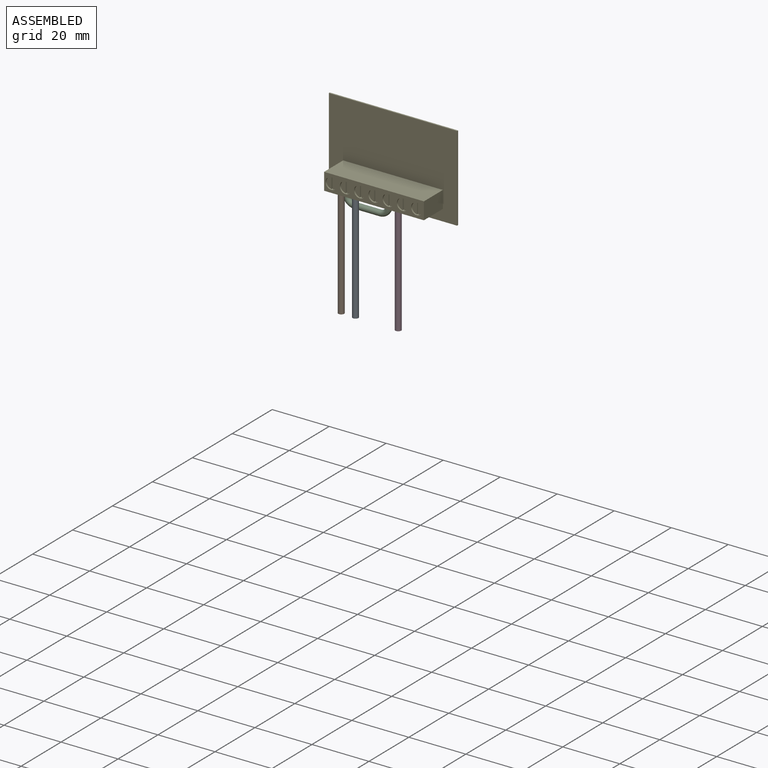
[diagram: assembled view]
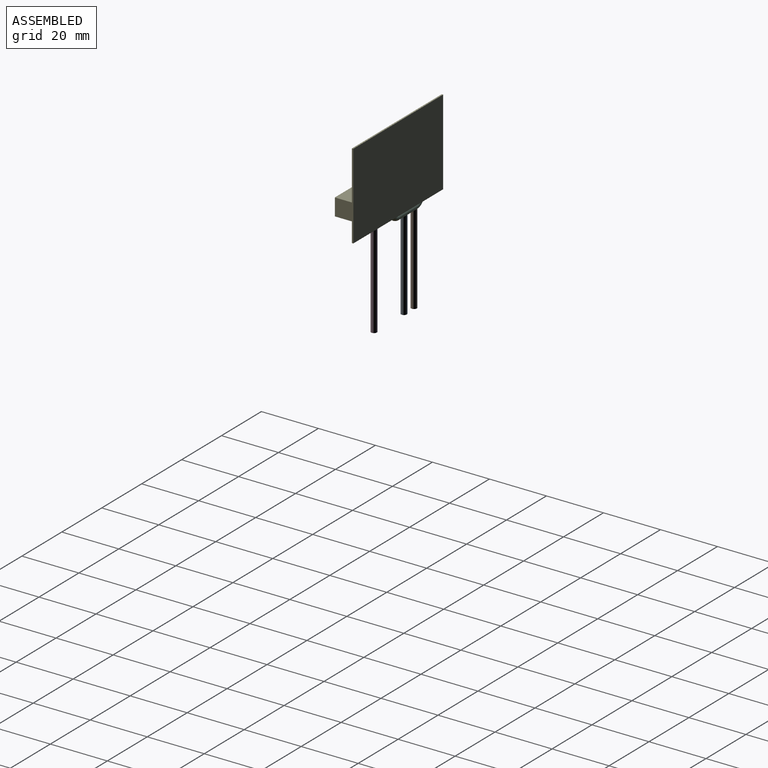
[diagram: assembled view, second angle]
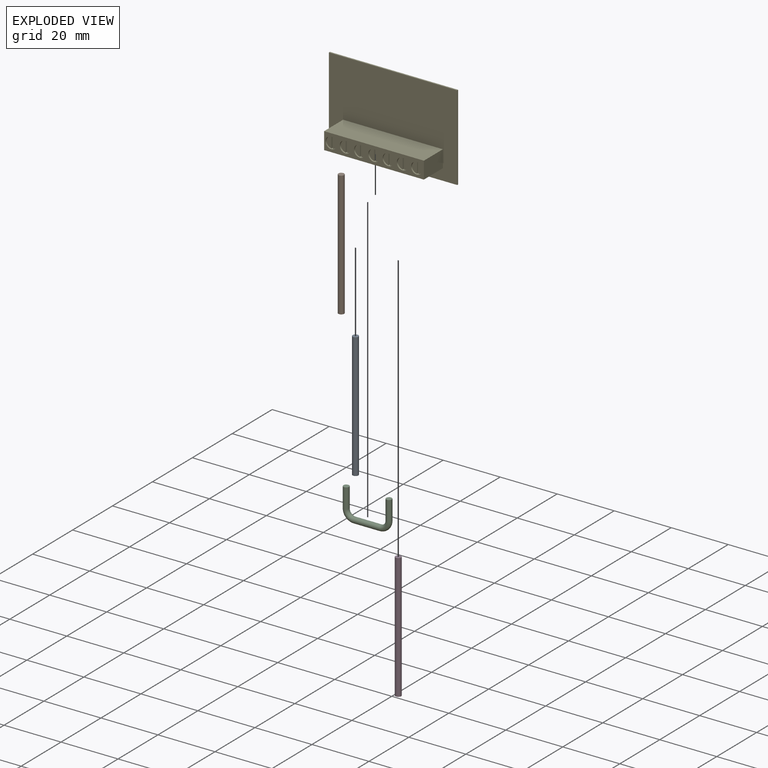
[diagram: exploded view]
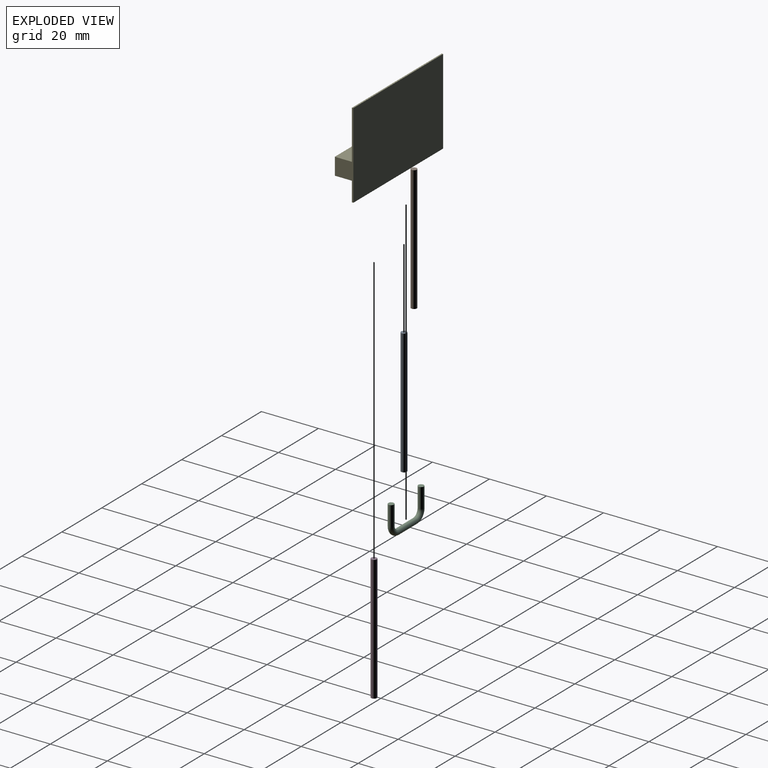
[diagram: exploded view, second angle]
ASSEMBLY  parts=5 mates=4
PART A: 3 faces, bbox 2x44x2 mm
  f0: cylinder r=1mm len=44mm, axis (0,1,0), area 276.5mm2, adj f1,f2
  f1: plane 2x2mm, normal (0,-1,0), area 3.1mm2, adj f0
  f2: plane 2x2mm, normal (0,1,0), area 3.1mm2, adj f0
PART B: same geometry as A
PART C: 7 faces, bbox 17.7x2x11.3 mm
  f0: plane 2x2mm, normal (0,0,-1), area 3.1mm2, adj f2
  f1: plane 2x2mm, normal (0,0,-1), area 3.1mm2, adj f6
  f2: cylinder r=1mm len=7mm, axis (0,0,1), area 44mm2, adj f0,f3
  f3: torus R=3mm, axis (0,1,0), area 29.6mm2, adj f2,f4
  f4: cylinder r=1mm len=9mm, axis (1,0,0), area 56.5mm2, adj f3,f5
  f5: torus R=3mm, axis (0,1,0), area 29.6mm2, adj f4,f6
  f6: cylinder r=1mm len=7mm, axis (0,0,-1), area 44mm2, adj f1,f5
PART D: same geometry as A
PART E: 104 faces, bbox 45x10x30 mm
  f0: plane 35x6mm, normal (0,-1,0), area 122.1mm2, adj f1,f2,f3,f34,f36,f38,f40,f42
  f1: plane 35x9.5mm, normal (0,0,-1), area 212.5mm2, adj f0,f2,f4,f5,f6,f7,f9,f10
  f2: plane 9.5x6mm, normal (-1,0,0), area 57mm2, adj f0,f1,f3,f98
  f3: plane 35x9.5mm, normal (0,0,1), area 332.5mm2, adj f0,f2,f88,f98
  f4: plane 4x4mm, normal (0,-1,0), area 16mm2, adj f1,f5,f7,f8
  f5: plane 5x4mm, normal (-1,0,0), area 20mm2, adj f1,f4,f6,f8
  f6: plane 4x4mm, normal (0,1,0), area 16mm2, adj f1,f5,f7,f8
  f7: plane 5x4mm, normal (1,0,0), area 20mm2, adj f1,f4,f6,f8
  f8: plane 5x4mm, normal (0,0,-1), area 20mm2, adj f4,f5,f6,f7
  f9: plane 4x4mm, normal (0,-1,0), area 16mm2, adj f1,f10,f12,f13
  f10: plane 5x4mm, normal (-1,0,0), area 20mm2, adj f1,f9,f11,f13
  f11: plane 4x4mm, normal (0,1,0), area 16mm2, adj f1,f10,f12,f13
  f12: plane 5x4mm, normal (1,0,0), area 20mm2, adj f1,f9,f11,f13
  f13: plane 5x4mm, normal (0,0,-1), area 20mm2, adj f9,f10,f11,f12
  f14: plane 5x4mm, normal (-1,0,0), area 20mm2, adj f1,f15,f17,f18
  f15: plane 4x4mm, normal (0,1,0), area 16mm2, adj f1,f14,f16,f18
  f16: plane 5x4mm, normal (1,0,0), area 20mm2, adj f1,f15,f17,f18
  f17: plane 4x4mm, normal (0,-1,0), area 16mm2, adj f1,f14,f16,f18
  f18: plane 5x4mm, normal (0,0,-1), area 20mm2, adj f14,f15,f16,f17
  f19: plane 5x4mm, normal (1,0,0), area 20mm2, adj f1,f20,f22,f23
  f20: plane 4x4mm, normal (0,-1,0), area 16mm2, adj f1,f19,f21,f23
  f21: plane 5x4mm, normal (-1,0,0), area 20mm2, adj f1,f20,f22,f23
  f22: plane 4x4mm, normal (0,1,0), area 16mm2, adj f1,f19,f21,f23
  f23: plane 5x4mm, normal (0,0,-1), area 20mm2, adj f19,f20,f21,f22
  f24: plane 5x4mm, normal (1,0,0), area 20mm2, adj f1,f25,f27,f28
  f25: plane 4x4mm, normal (0,-1,0), area 16mm2, adj f1,f24,f26,f28
  f26: plane 5x4mm, normal (-1,0,0), area 20mm2, adj f1,f25,f27,f28
  f27: plane 4x4mm, normal (0,1,0), area 16mm2, adj f1,f24,f26,f28
  f28: plane 5x4mm, normal (0,0,-1), area 20mm2, adj f24,f25,f26,f27
  f29: plane 5x4mm, normal (-1,0,0), area 20mm2, adj f1,f30,f32,f33
  f30: plane 4x4mm, normal (0,1,0), area 16mm2, adj f1,f29,f31,f33
  f31: plane 5x4mm, normal (1,0,0), area 20mm2, adj f1,f30,f32,f33
  f32: plane 4x4mm, normal (0,-1,0), area 16mm2, adj f1,f29,f31,f33
  f33: plane 5x4mm, normal (0,0,-1), area 20mm2, adj f29,f30,f31,f32
  f34: cylinder r=2mm len=3.97mm, axis (0,-1,0), area 2.9mm2, adj f0,f35,f83,f85
  f35: plane 3.97x1.75mm, normal (0,-1,0), area 5.3mm2, adj f34,f86
  f36: cylinder r=2mm len=3.97mm, axis (0,-1,0), area 2.9mm2, adj f0,f37,f83,f85
  f37: plane 3.97x1.75mm, normal (0,-1,0), area 5.3mm2, adj f36,f84
  f38: cylinder r=2mm len=3.97mm, axis (0,-1,0), area 2.9mm2, adj f0,f39,f79,f81
  f39: plane 3.97x1.75mm, normal (0,-1,0), area 5.3mm2, adj f38,f78
  f40: cylinder r=2mm len=3.97mm, axis (0,-1,0), area 2.9mm2, adj f0,f41,f79,f81
  f41: plane 3.97x1.75mm, normal (0,-1,0), area 5.3mm2, adj f40,f80
  f42: cylinder r=2mm len=3.97mm, axis (0,-1,0), area 2.9mm2, adj f0,f43,f74,f76
  f43: plane 3.97x1.75mm, normal (0,-1,0), area 5.3mm2, adj f42,f75
  f44: cylinder r=2mm len=3.97mm, axis (0,-1,0), area 2.9mm2, adj f0,f45,f74,f76
  f45: plane 3.97x1.75mm, normal (0,-1,0), area 5.3mm2, adj f44,f73
  f46: cylinder r=2mm len=3.97mm, axis (0,-1,0), area 2.9mm2, adj f0,f47,f69,f71
  f47: plane 3.97x1.75mm, normal (0,-1,0), area 5.3mm2, adj f46,f70
  f48: cylinder r=2mm len=3.97mm, axis (0,-1,0), area 2.9mm2, adj f0,f49,f69,f71
  f49: plane 3.97x1.75mm, normal (0,-1,0), area 5.3mm2, adj f48,f68
  f50: cylinder r=2mm len=3.97mm, axis (0,-1,0), area 2.9mm2, adj f0,f51,f64,f66
  f51: plane 3.97x1.75mm, normal (0,-1,0), area 5.3mm2, adj f50,f63
  f52: cylinder r=2mm len=3.97mm, axis (0,-1,0), area 2.9mm2, adj f0,f53,f64,f66
  f53: plane 3.97x1.75mm, normal (0,-1,0), area 5.3mm2, adj f52,f65
  f54: cylinder r=2mm len=3.97mm, axis (0,-1,0), area 2.9mm2, adj f0,f55,f59,f61
  f55: plane 3.97x1.75mm, normal (0,-1,0), area 5.3mm2, adj f54,f58
  f56: cylinder r=2mm len=3.97mm, axis (0,-1,0), area 2.9mm2, adj f0,f57,f59,f61
  f57: plane 3.97x1.75mm, normal (0,-1,0), area 5.3mm2, adj f56,f60
  f58: plane 3.97x0.5mm, normal (-1,0,0), area 2mm2, adj f55,f59,f61,f62
  f59: plane 1x0.5mm, normal (0,0,-1), area 0.5mm2, adj f0,f54,f56,f58,f60,f62
  f60: plane 3.97x0.5mm, normal (1,0,0), area 2mm2, adj f57,f59,f61,f62
  f61: plane 1x0.5mm, normal (0,0,1), area 0.5mm2, adj f0,f54,f56,f58,f60,f62
  f62: plane 3.97x0.5mm, normal (0,-1,0), area 2mm2, adj f58,f59,f60,f61
  f63: plane 3.97x0.5mm, normal (-1,0,0), area 2mm2, adj f51,f64,f66,f67
  f64: plane 1x0.5mm, normal (0,0,-1), area 0.5mm2, adj f0,f50,f52,f63,f65,f67
  f65: plane 3.97x0.5mm, normal (1,0,0), area 2mm2, adj f53,f64,f66,f67
  f66: plane 1x0.5mm, normal (0,0,1), area 0.5mm2, adj f0,f50,f52,f63,f65,f67
  f67: plane 3.97x0.5mm, normal (0,-1,0), area 2mm2, adj f63,f64,f65,f66
  f68: plane 3.97x0.5mm, normal (1,0,0), area 2mm2, adj f49,f69,f71,f72
  f69: plane 1x0.5mm, normal (0,0,1), area 0.5mm2, adj f0,f46,f48,f68,f70,f72
  f70: plane 3.97x0.5mm, normal (-1,0,0), area 2mm2, adj f47,f69,f71,f72
  f71: plane 1x0.5mm, normal (0,0,-1), area 0.5mm2, adj f0,f46,f48,f68,f70,f72
  f72: plane 3.97x0.5mm, normal (0,-1,0), area 2mm2, adj f68,f69,f70,f71
  f73: plane 3.97x0.5mm, normal (1,0,0), area 2mm2, adj f45,f74,f76,f77
  f74: plane 1x0.5mm, normal (0,0,1), area 0.5mm2, adj f0,f42,f44,f73,f75,f77
  f75: plane 3.97x0.5mm, normal (-1,0,0), area 2mm2, adj f43,f74,f76,f77
  f76: plane 1x0.5mm, normal (0,0,-1), area 0.5mm2, adj f0,f42,f44,f73,f75,f77
  f77: plane 3.97x0.5mm, normal (0,-1,0), area 2mm2, adj f73,f74,f75,f76
  f78: plane 3.97x0.5mm, normal (-1,0,0), area 2mm2, adj f39,f79,f81,f82
  f79: plane 1x0.5mm, normal (0,0,-1), area 0.5mm2, adj f0,f38,f40,f78,f80,f82
  f80: plane 3.97x0.5mm, normal (1,0,0), area 2mm2, adj f41,f79,f81,f82
  f81: plane 1x0.5mm, normal (0,0,1), area 0.5mm2, adj f0,f38,f40,f78,f80,f82
  f82: plane 3.97x0.5mm, normal (0,-1,0), area 2mm2, adj f78,f79,f80,f81
  f83: plane 1x0.5mm, normal (0,0,-1), area 0.5mm2, adj f0,f34,f36,f84,f86,f87
  f84: plane 3.97x0.5mm, normal (1,0,0), area 2mm2, adj f37,f83,f85,f87
  f85: plane 1x0.5mm, normal (0,0,1), area 0.5mm2, adj f0,f34,f36,f84,f86,f87
  f86: plane 3.97x0.5mm, normal (-1,0,0), area 2mm2, adj f35,f83,f85,f87
  f87: plane 3.97x0.5mm, normal (0,-1,0), area 2mm2, adj f83,f84,f85,f86
  f88: plane 9.5x6mm, normal (1,0,0), area 57mm2, adj f0,f1,f3,f98
  f89: cylinder r=2mm len=3.97mm, axis (0,-1,0), area 2.9mm2, adj f0,f90,f92,f94
  f90: plane 3.97x1.75mm, normal (0,-1,0), area 5.3mm2, adj f89,f93
  f91: plane 3.97x0.5mm, normal (1,0,0), area 2mm2, adj f92,f94,f95,f97
  f92: plane 1x0.5mm, normal (0,0,1), area 0.5mm2, adj f0,f89,f91,f93,f95,f96
  f93: plane 3.97x0.5mm, normal (-1,0,0), area 2mm2, adj f90,f92,f94,f95
  f94: plane 1x0.5mm, normal (0,0,-1), area 0.5mm2, adj f0,f89,f91,f93,f95,f96
  f95: plane 3.97x0.5mm, normal (0,-1,0), area 2mm2, adj f91,f92,f93,f94
  f96: cylinder r=2mm len=3.97mm, axis (0,-1,0), area 2.9mm2, adj f0,f92,f94,f97
  f97: plane 3.97x1.75mm, normal (0,-1,0), area 5.3mm2, adj f91,f96
  f98: plane 45x30mm, normal (0,-1,0), area 1140mm2, adj f1,f2,f3,f88,f100,f101,f102,f103
  f99: plane 45x30mm, normal (0,1,0), area 1350mm2, adj f100,f101,f102,f103
  f100: plane 30x0.5mm, normal (1,0,0), area 15mm2, adj f98,f99,f102,f103
  f101: plane 30x0.5mm, normal (-1,0,0), area 15mm2, adj f98,f99,f102,f103
  f102: plane 45x0.5mm, normal (0,0,-1), area 22.5mm2, adj f98,f99,f100,f101
  f103: plane 45x0.5mm, normal (0,0,1), area 22.5mm2, adj f98,f99,f100,f101
PLACE A rot(axis=(-1,0,0),90deg) t=(-12.32,-0.56,-27.84)mm
PLACE B rot(axis=(-1,0,0),90deg) t=(-17.32,-0.56,-27.84)mm
PLACE C rot(axis=(1,0,0),180deg) t=(-17.32,1.94,-5.84)mm
PLACE D rot(axis=(-1,0,0),90deg) t=(2.68,-0.56,-27.84)mm
PLACE E t=(-4.82,3.94,1.16)mm fixed
MATE fastened A.f0 <-> E.f28  axis (0,0,1) through (-12.32,-0.56,-5.84)mm
MATE fastened D.f0 <-> E.f13  axis (0,0,1) through (2.68,-0.56,-5.84)mm
MATE fastened C.f2 <-> E.f33  axis (0,0,1) through (-17.32,1.94,-5.84)mm
MATE fastened B.f0 <-> E.f33  axis (0,0,1) through (-17.32,-0.56,-5.84)mm
